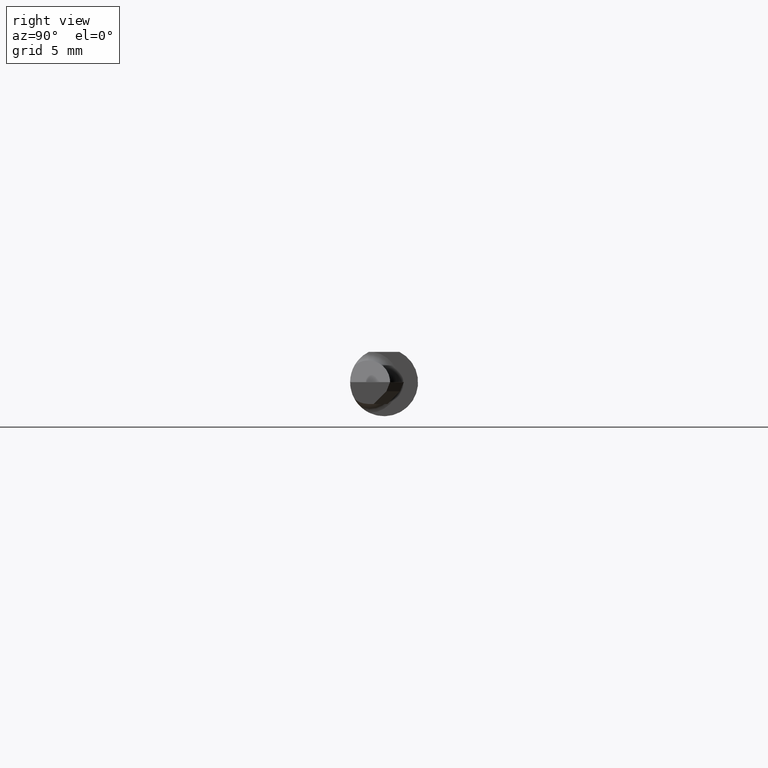
[diagram: clean part render]
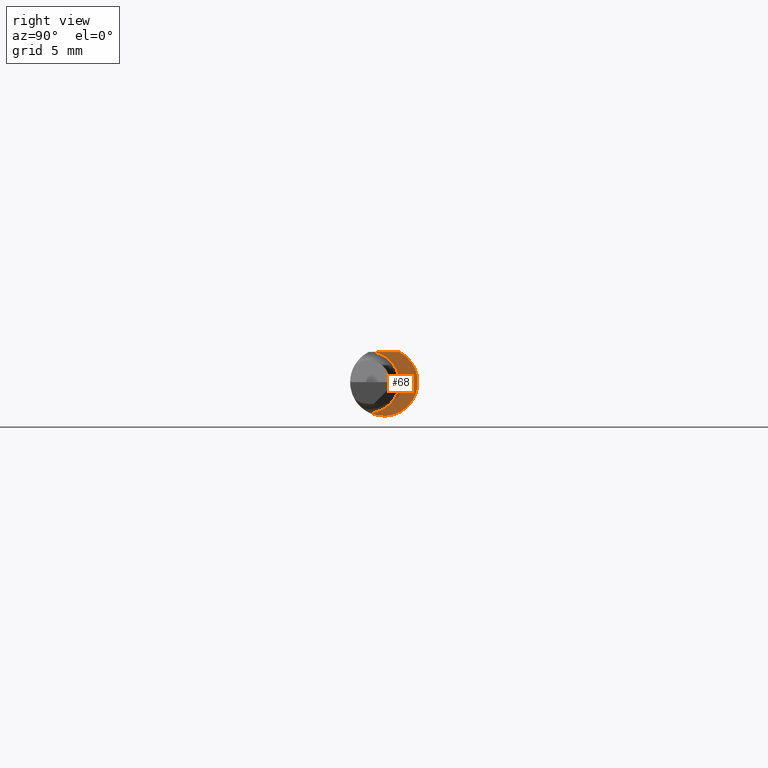
[diagram: same view with one face highlighted and labeled with its STEP entity id]
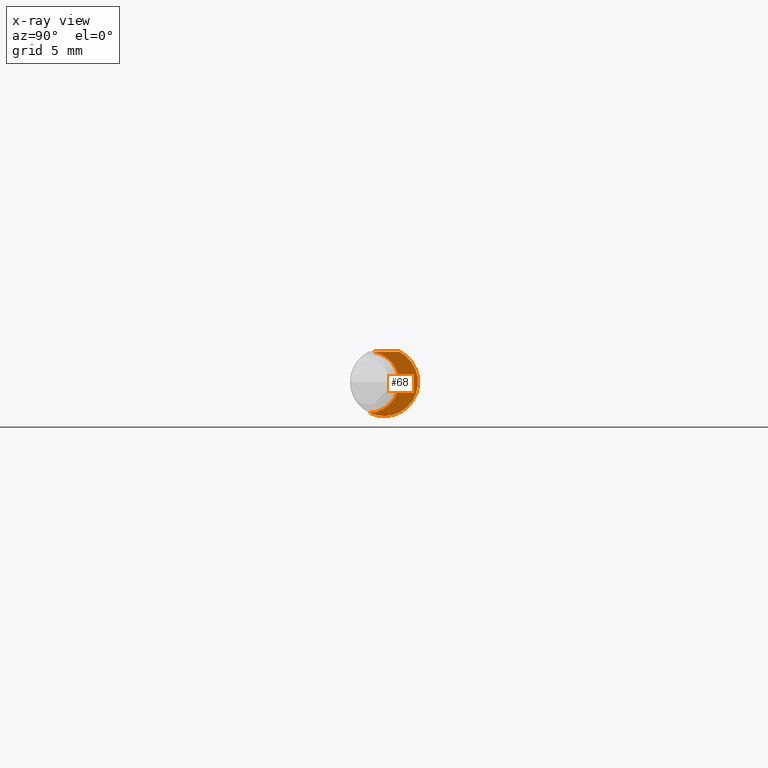
[diagram: x-ray of the same camera — body ghosted, the highlighted face saturated]
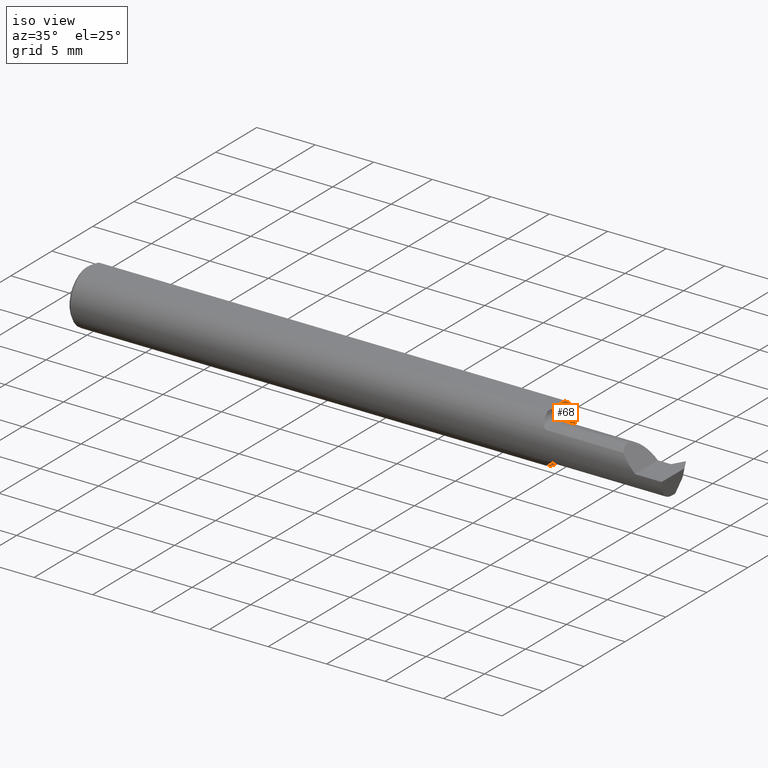
[diagram: same view with one face highlighted and labeled with its STEP entity id]
A machine part, right view. The second image highlights one B-rep face of the part: STEP entity #68.
The next image is the same camera in x-ray: the body ghosted, the highlighted face saturated — about 3% of this face is hidden behind the body in this view.
A second angle (iso view) of the same face is appended — the face is thin or edge-on in the first view.
In plain terms, the highlighted planar face has unit normal (1, 0, 0).
Its self-contained STEP definition (entity closure, byte-faithful):
#16 = DIRECTION ( 'NONE',  ( 0.000000000000000000, 1.000000000000000000, 0.000000000000000000 ) ) ;
#27 = ORIENTED_EDGE ( 'NONE', *, *, #645, .T. ) ;
#68 = ADVANCED_FACE ( 'NONE', ( #277 ), #692, .T. ) ;
#75 = DIRECTION ( 'NONE',  ( -1.000000000000000000, -0.000000000000000000, -0.000000000000000000 ) ) ;
#117 = EDGE_LOOP ( 'NONE', ( #27, #665, #502 ) ) ;
#125 = CARTESIAN_POINT ( 'NONE',  ( 1.580000000000000071, 0.09359999999999996101, 0.000000000000000000 ) ) ;
#162 = DIRECTION ( 'NONE',  ( 0.000000000000000000, 0.000000000000000000, 1.000000000000000000 ) ) ;
#175 = VERTEX_POINT ( 'NONE', #479 ) ;
#187 = EDGE_CURVE ( 'NONE', #175, #554, #578, .T. ) ;
#191 = DIRECTION ( 'NONE',  ( 1.000000000000000000, 0.000000000000000000, 0.000000000000000000 ) ) ;
#252 = EDGE_CURVE ( 'NONE', #175, #299, #725, .T. ) ;
#255 = CARTESIAN_POINT ( 'NONE',  ( 1.580000000000000071, 0.04209513035969860567, 0.08359999999999989662 ) ) ;
#277 = FACE_OUTER_BOUND ( 'NONE', #117, .T. ) ;
#299 = VERTEX_POINT ( 'NONE', #843 ) ;
#373 = CIRCLE ( 'NONE', #591, 0.09360000000000001652 ) ;
#420 = DIRECTION ( 'NONE',  ( 0.000000000000000000, 0.000000000000000000, -1.000000000000000000 ) ) ;
#423 = CARTESIAN_POINT ( 'NONE',  ( 1.580000000000000071, 0.000000000000000000, 0.000000000000000000 ) ) ;
#479 = CARTESIAN_POINT ( 'NONE',  ( 1.580000000000000071, -0.02823640667031252979, 0.08359999999999992437 ) ) ;
#490 = AXIS2_PLACEMENT_3D ( 'NONE', #789, #75, #162 ) ;
#502 = ORIENTED_EDGE ( 'NONE', *, *, #252, .T. ) ;
#509 = DIRECTION ( 'NONE',  ( 1.000000000000000000, 0.000000000000000000, 0.000000000000000000 ) ) ;
#554 = VERTEX_POINT ( 'NONE', #255 ) ;
#574 = AXIS2_PLACEMENT_3D ( 'NONE', #125, #191, #768 ) ;
#578 = LINE ( 'NONE', #648, #767 ) ;
#591 = AXIS2_PLACEMENT_3D ( 'NONE', #423, #509, #420 ) ;
#645 = EDGE_CURVE ( 'NONE', #299, #554, #373, .T. ) ;
#648 = CARTESIAN_POINT ( 'NONE',  ( 1.580000000000000071, 0.09360000000000001652, 0.08359999999999992437 ) ) ;
#665 = ORIENTED_EDGE ( 'NONE', *, *, #187, .F. ) ;
#692 = PLANE ( 'NONE',  #574 ) ;
#725 = CIRCLE ( 'NONE', #490, 0.08500000000000004774 ) ;
#767 = VECTOR ( 'NONE', #16, 39.37007874015748143 ) ;
#768 = DIRECTION ( 'NONE',  ( 0.000000000000000000, 0.000000000000000000, -1.000000000000000000 ) ) ;
#789 = CARTESIAN_POINT ( 'NONE',  ( 1.580000000000000071, -0.04360000000000009701, 0.000000000000000000 ) ) ;
#843 = CARTESIAN_POINT ( 'NONE',  ( 1.580000000000000071, -0.03941422018348617051, -0.08489687419055939877 ) ) ;